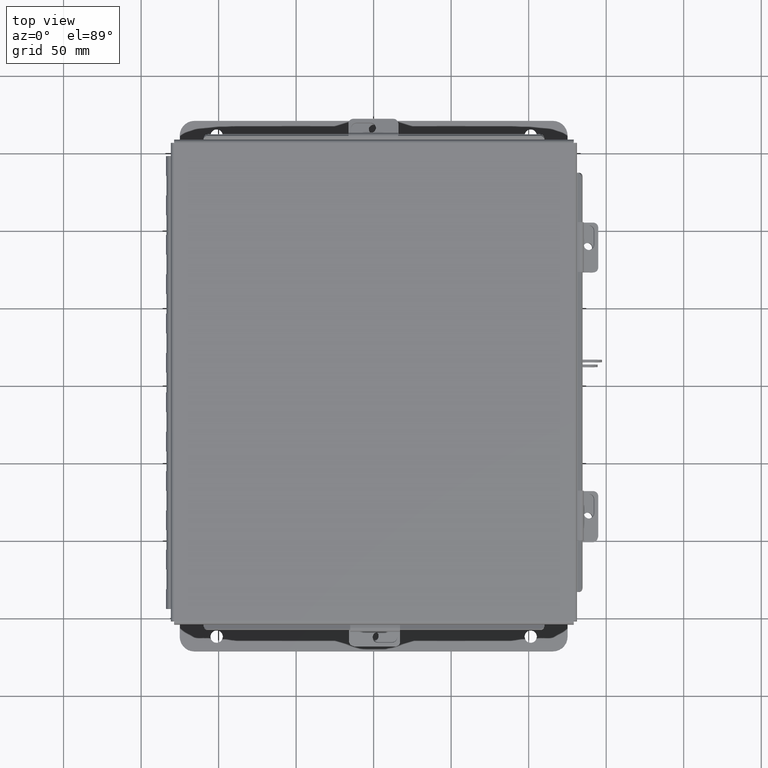
[diagram: clean part render]
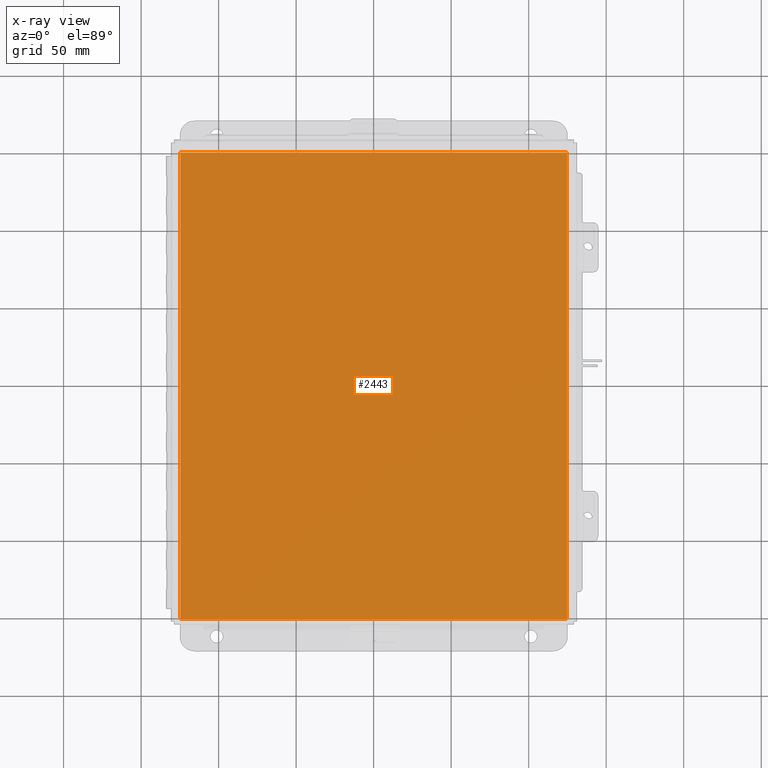
[diagram: x-ray — body ghosted, one internal face saturated and labeled with its STEP entity id]
A machine part, top view, then the same camera in x-ray: the body is ghosted and one INTERNAL B-rep face — a face not visible from any outside direction — is saturated and labeled: STEP entity #2443.
In plain terms, the highlighted planar face has unit normal (0, 0, -1).
Its self-contained STEP definition (entity closure, byte-faithful):
#719 = AXIS2_PLACEMENT_3D ( 'NONE', #9171, #4540, #8776 ) ;
#1311 = ORIENTED_EDGE ( 'NONE', *, *, #16492, .F. ) ;
#1414 = VECTOR ( 'NONE', #6254, 39.37007874015748100 ) ;
#1418 = FACE_OUTER_BOUND ( 'NONE', #13553, .T. ) ;
#2115 = CARTESIAN_POINT ( 'NONE',  ( -5.000000000000000000, 5.925300000000000000, 0.0000000000000000000 ) ) ;
#2443 = ADVANCED_FACE ( 'NONE', ( #1418 ), #10023, .F. ) ;
#2506 = VECTOR ( 'NONE', #8016, 39.37007874015748100 ) ;
#2780 = EDGE_CURVE ( 'NONE', #14669, #13955, #16240, .T. ) ;
#2877 = ORIENTED_EDGE ( 'NONE', *, *, #2780, .T. ) ;
#3115 = VERTEX_POINT ( 'NONE', #8225 ) ;
#3183 = ORIENTED_EDGE ( 'NONE', *, *, #16596, .F. ) ;
#3454 = ORIENTED_EDGE ( 'NONE', *, *, #17240, .T. ) ;
#4407 = CARTESIAN_POINT ( 'NONE',  ( 4.912300000000000100, 5.925299999999997300, 4.268512490100411300E-017 ) ) ;
#4540 = DIRECTION ( 'NONE',  ( 0.0000000000000000000, 0.0000000000000000000, -1.000000000000000000 ) ) ;
#4815 = DIRECTION ( 'NONE',  ( 1.000000000000000000, 0.0000000000000000000, 0.0000000000000000000 ) ) ;
#6254 = DIRECTION ( 'NONE',  ( -0.0000000000000000000, 1.000000000000000000, -0.0000000000000000000 ) ) ;
#6713 = VERTEX_POINT ( 'NONE', #8440 ) ;
#8016 = DIRECTION ( 'NONE',  ( -1.000000000000000000, -0.0000000000000000000, -0.0000000000000000000 ) ) ;
#8225 = CARTESIAN_POINT ( 'NONE',  ( 4.912300000000000100, -5.925300000000000000, 4.268512490100411300E-017 ) ) ;
#8238 = LINE ( 'NONE', #15881, #1414 ) ;
#8440 = CARTESIAN_POINT ( 'NONE',  ( -4.912300000000000100, -5.925299999999997300, 4.268512490100411300E-017 ) ) ;
#8776 = DIRECTION ( 'NONE',  ( -1.000000000000000000, 0.0000000000000000000, -0.0000000000000000000 ) ) ;
#9171 = CARTESIAN_POINT ( 'NONE',  ( 0.0000000000000000000, 0.0000000000000000000, 0.0000000000000000000 ) ) ;
#9325 = LINE ( 'NONE', #13034, #16247 ) ;
#10023 = PLANE ( 'NONE',  #719 ) ;
#10551 = CARTESIAN_POINT ( 'NONE',  ( 4.912300000000000100, 5.925300000000000000, 4.268512490100411300E-017 ) ) ;
#10590 = VECTOR ( 'NONE', #11953, 39.37007874015748100 ) ;
#11953 = DIRECTION ( 'NONE',  ( -0.0000000000000000000, -1.000000000000000000, -0.0000000000000000000 ) ) ;
#12001 = CARTESIAN_POINT ( 'NONE',  ( -4.912300000000000100, 5.925300000000000000, 4.268512490100411300E-017 ) ) ;
#13034 = CARTESIAN_POINT ( 'NONE',  ( -5.000000000000000000, -5.925300000000000000, 0.0000000000000000000 ) ) ;
#13553 = EDGE_LOOP ( 'NONE', ( #3183, #2877, #1311, #3454 ) ) ;
#13955 = VERTEX_POINT ( 'NONE', #12001 ) ;
#14669 = VERTEX_POINT ( 'NONE', #4407 ) ;
#15881 = CARTESIAN_POINT ( 'NONE',  ( -4.912300000000000100, -5.925300000000000000, 4.268512490100411300E-017 ) ) ;
#16240 = LINE ( 'NONE', #2115, #2506 ) ;
#16247 = VECTOR ( 'NONE', #4815, 39.37007874015748100 ) ;
#16492 = EDGE_CURVE ( 'NONE', #6713, #13955, #8238, .T. ) ;
#16596 = EDGE_CURVE ( 'NONE', #14669, #3115, #17466, .T. ) ;
#17240 = EDGE_CURVE ( 'NONE', #6713, #3115, #9325, .T. ) ;
#17466 = LINE ( 'NONE', #10551, #10590 ) ;